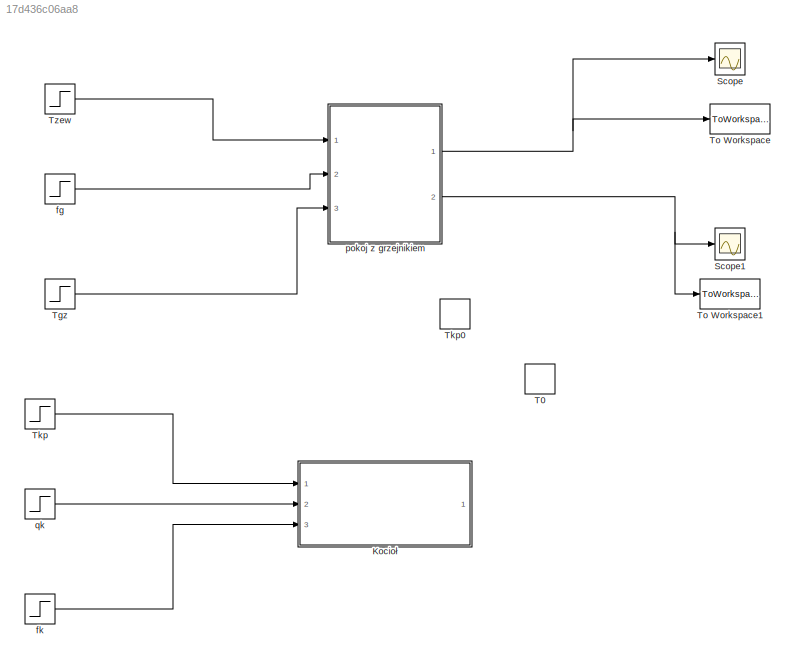
MODEL slx_17d436c06aa8
KIND model
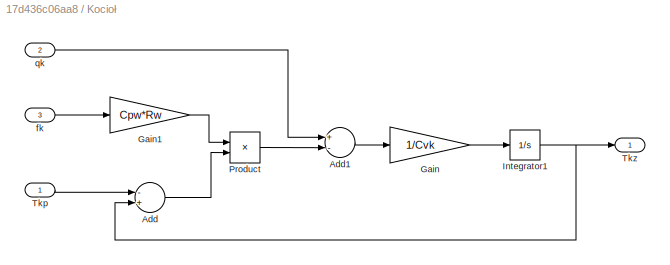
BLOCK [SubSystem] Kocioł
  Ports = [3, 1]
  RequestExecContextInheritance = off
BLOCK [Sum] Kocioł/Add
  InputSameDT = off
  Inputs = -+
  OutDataTypeStr = Inherit: Inherit via internal rule
  Ports = [2, 1]
  SaturateOnIntegerOverflow = off
BLOCK [Sum] Kocioł/Add1
  InputSameDT = off
  Inputs = +-
  OutDataTypeStr = Inherit: Inherit via internal rule
  Ports = [2, 1]
  SaturateOnIntegerOverflow = off
BLOCK [Gain] Kocioł/Gain
  Gain = 1/Cvk
  OutDataTypeStr = Inherit: Inherit via internal rule
  ParamDataTypeStr = Inherit: Inherit via internal rule
  SaturateOnIntegerOverflow = off
BLOCK [Gain] Kocioł/Gain1
  Gain = Cpw*Rw
  OutDataTypeStr = Inherit: Inherit via internal rule
  ParamDataTypeStr = Inherit: Inherit via internal rule
  SaturateOnIntegerOverflow = off
BLOCK [Integrator] Kocioł/Integrator1
  InitialCondition = Tkz0
  Ports = [1, 1]
BLOCK [Product] Kocioł/Product
  InputSameDT = off
  OutDataTypeStr = Inherit: Inherit via internal rule
  Ports = [2, 1]
  RndMeth = Floor
  SaturateOnIntegerOverflow = off
BLOCK [Inport] Kocioł/Tkp
  IconDisplay = Port number
BLOCK [Outport] Kocioł/Tkz
  IconDisplay = Port number
BLOCK [Inport] Kocioł/fk
  IconDisplay = Port number
  Port = 3
BLOCK [Inport] Kocioł/qk
  IconDisplay = Port number
  Port = 2
BLOCK [Scope] Scope
  DataFormat = StructureWithTime
  Floating = off
  NumInputPorts = 1
  Ports = [1]
  SampleTime = 0
  ShowLegends = off
  YMax = 26.3625
  YMin = 26.335
BLOCK [Scope] Scope1
  DataFormat = StructureWithTime
  Floating = off
  NumInputPorts = 1
  Ports = [1]
  SampleTime = 0
  SaveName = ScopeData1
  ShowLegends = off
BLOCK [TransportDelay] T0
  InitialOutput = Tkz0
  Ports = [1, 1]
BLOCK [Step] Tgz 
  After = Tgz0+dTgz
  Before = Tgz0
  SampleTime = 0
BLOCK [Step] Tkp
  After = Tkp0
  Before = Tkp0
  SampleTime = 0
BLOCK [TransportDelay] Tkp0
  InitialOutput = Tkp0
  Ports = [1, 1]
BLOCK [ToWorkspace] To Workspace
  MaxDataPoints = inf
  Ports = [1]
  SampleTime = -1
  SaveFormat = Timeseries
  VariableName = Twew
BLOCK [ToWorkspace] To Workspace1
  MaxDataPoints = inf
  Ports = [1]
  SampleTime = -1
  SaveFormat = Timeseries
  VariableName = Tgp
BLOCK [Step] Tzew 
  After = Tzew0+dTzew
  Before = Tzew0
  SampleTime = 0
BLOCK [Step] fg 
  After = fg0+dfg
  Before = fg0
  SampleTime = 0
BLOCK [Step] fk
  After = fk0
  Before = fk0
  SampleTime = 0
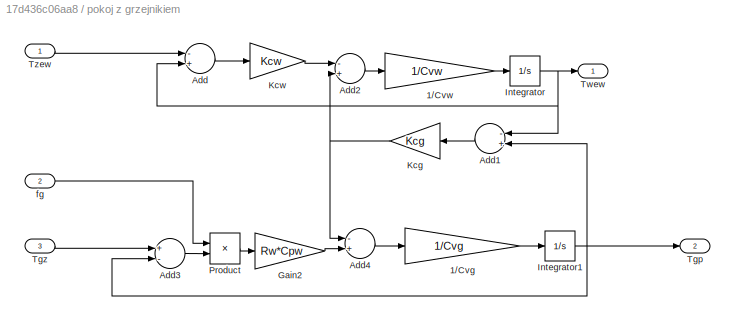
BLOCK [SubSystem] pokoj z grzejnikiem 
  Ports = [3, 2]
  RequestExecContextInheritance = off
BLOCK [Gain] pokoj z grzejnikiem /1//Cvg
  Gain = 1/Cvg
  OutDataTypeStr = Inherit: Inherit via internal rule
  ParamDataTypeStr = Inherit: Inherit via internal rule
  SaturateOnIntegerOverflow = off
BLOCK [Gain] pokoj z grzejnikiem /1//Cvw
  Gain = 1/Cvw
  OutDataTypeStr = Inherit: Inherit via internal rule
  ParamDataTypeStr = Inherit: Inherit via internal rule
  SaturateOnIntegerOverflow = off
BLOCK [Sum] pokoj z grzejnikiem /Add
  InputSameDT = off
  Inputs = -+
  OutDataTypeStr = Inherit: Inherit via internal rule
  Ports = [2, 1]
  SaturateOnIntegerOverflow = off
BLOCK [Sum] pokoj z grzejnikiem /Add1
  InputSameDT = off
  Inputs = -+
  OutDataTypeStr = Inherit: Inherit via internal rule
  Ports = [2, 1]
  SaturateOnIntegerOverflow = off
BLOCK [Sum] pokoj z grzejnikiem /Add2
  InputSameDT = off
  Inputs = -+
  OutDataTypeStr = Inherit: Inherit via internal rule
  Ports = [2, 1]
  SaturateOnIntegerOverflow = off
BLOCK [Sum] pokoj z grzejnikiem /Add3
  InputSameDT = off
  Inputs = +-
  OutDataTypeStr = Inherit: Inherit via internal rule
  Ports = [2, 1]
  SaturateOnIntegerOverflow = off
BLOCK [Sum] pokoj z grzejnikiem /Add4
  InputSameDT = off
  Inputs = -+
  OutDataTypeStr = Inherit: Inherit via internal rule
  Ports = [2, 1]
  SaturateOnIntegerOverflow = off
BLOCK [Gain] pokoj z grzejnikiem /Gain2
  Gain = Rw*Cpw
  OutDataTypeStr = Inherit: Inherit via internal rule
  ParamDataTypeStr = Inherit: Inherit via internal rule
  SaturateOnIntegerOverflow = off
BLOCK [Integrator] pokoj z grzejnikiem /Integrator
  InitialCondition = Twew0
  Ports = [1, 1]
BLOCK [Integrator] pokoj z grzejnikiem /Integrator1
  InitialCondition = Tgp0
  Ports = [1, 1]
BLOCK [Gain] pokoj z grzejnikiem /Kcg 
  Gain = Kcg
  OutDataTypeStr = Inherit: Inherit via internal rule
  ParamDataTypeStr = Inherit: Inherit via internal rule
  SaturateOnIntegerOverflow = off
BLOCK [Gain] pokoj z grzejnikiem /Kcw
  Gain = Kcw
  OutDataTypeStr = Inherit: Inherit via internal rule
  ParamDataTypeStr = Inherit: Inherit via internal rule
  SaturateOnIntegerOverflow = off
BLOCK [Product] pokoj z grzejnikiem /Product
  InputSameDT = off
  OutDataTypeStr = Inherit: Inherit via internal rule
  Ports = [2, 1]
  RndMeth = Floor
  SaturateOnIntegerOverflow = off
BLOCK [Outport] pokoj z grzejnikiem /Tgp
  IconDisplay = Port number
  Port = 2
BLOCK [Inport] pokoj z grzejnikiem /Tgz
  IconDisplay = Port number
  Port = 3
BLOCK [Outport] pokoj z grzejnikiem /Twew
  IconDisplay = Port number
BLOCK [Inport] pokoj z grzejnikiem /Tzew
  IconDisplay = Port number
BLOCK [Inport] pokoj z grzejnikiem /fg
  IconDisplay = Port number
  Port = 2
BLOCK [Step] qk
  After = qk0
  Before = qk0
  SampleTime = 0
LINE Kocioł/Add1:1 -> Kocioł/Gain:1
LINE Kocioł/Add:1 -> Kocioł/Product:2
LINE Kocioł/Gain1:1 -> Kocioł/Product:1
LINE Kocioł/Gain:1 -> Kocioł/Integrator1:1
NET Kocioł/Integrator1:1 -> Kocioł/Add:2, Kocioł/Tkz:1
LINE Kocioł/Product:1 -> Kocioł/Add1:2
LINE Kocioł/Tkp:1 -> Kocioł/Add:1
LINE Kocioł/fk:1 -> Kocioł/Gain1:1
LINE Kocioł/qk:1 -> Kocioł/Add1:1
LINE Tgz :1 -> pokoj z grzejnikiem :3
LINE Tkp:1 -> Kocioł:1
LINE Tzew :1 -> pokoj z grzejnikiem :1
LINE fg :1 -> pokoj z grzejnikiem :2
LINE fk:1 -> Kocioł:3
LINE pokoj z grzejnikiem /1//Cvg:1 -> pokoj z grzejnikiem /Integrator1:1
LINE pokoj z grzejnikiem /1//Cvw:1 -> pokoj z grzejnikiem /Integrator:1
LINE pokoj z grzejnikiem /Add1:1 -> pokoj z grzejnikiem /Kcg :1
LINE pokoj z grzejnikiem /Add2:1 -> pokoj z grzejnikiem /1//Cvw:1
LINE pokoj z grzejnikiem /Add3:1 -> pokoj z grzejnikiem /Product:2
LINE pokoj z grzejnikiem /Add4:1 -> pokoj z grzejnikiem /1//Cvg:1
LINE pokoj z grzejnikiem /Add:1 -> pokoj z grzejnikiem /Kcw:1
LINE pokoj z grzejnikiem /Gain2:1 -> pokoj z grzejnikiem /Add4:2
NET pokoj z grzejnikiem /Integrator1:1 -> pokoj z grzejnikiem /Add1:2, pokoj z grzejnikiem /Add3:2, pokoj z grzejnikiem /Tgp:1
NET pokoj z grzejnikiem /Integrator:1 -> pokoj z grzejnikiem /Add1:1, pokoj z grzejnikiem /Add:2, pokoj z grzejnikiem /Twew:1
NET pokoj z grzejnikiem /Kcg :1 -> pokoj z grzejnikiem /Add2:2, pokoj z grzejnikiem /Add4:1
LINE pokoj z grzejnikiem /Kcw:1 -> pokoj z grzejnikiem /Add2:1
LINE pokoj z grzejnikiem /Product:1 -> pokoj z grzejnikiem /Gain2:1
LINE pokoj z grzejnikiem /Tgz:1 -> pokoj z grzejnikiem /Add3:1
LINE pokoj z grzejnikiem /Tzew:1 -> pokoj z grzejnikiem /Add:1
LINE pokoj z grzejnikiem /fg:1 -> pokoj z grzejnikiem /Product:1
NET pokoj z grzejnikiem :1 -> Scope:1, To Workspace:1
NET pokoj z grzejnikiem :2 -> Scope1:1, To Workspace1:1
LINE qk:1 -> Kocioł:2
note: NET lines group one-source signal fan-out (src -> all destinations, sorted); 1:1 wires keep LINE
